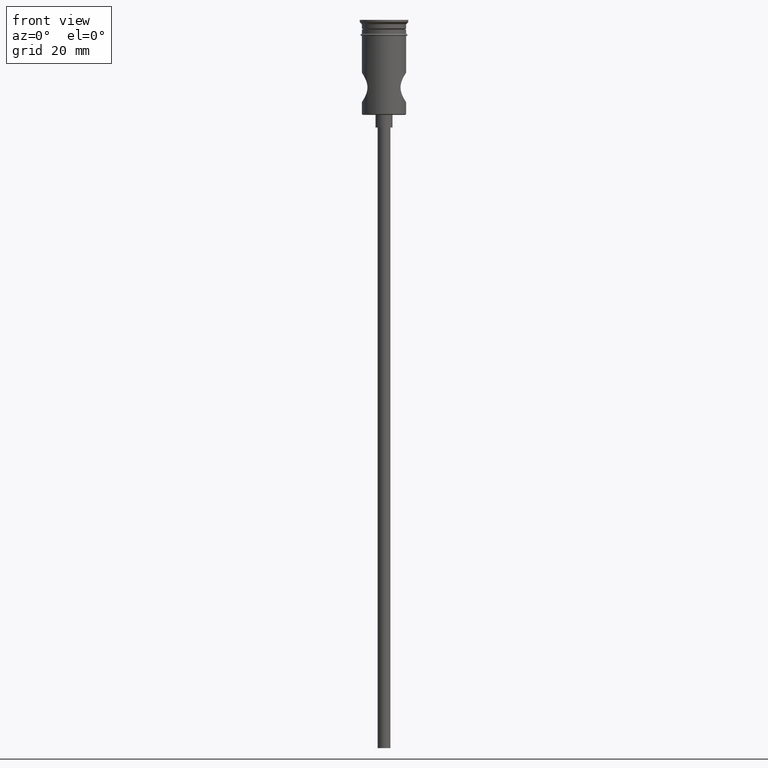
[diagram: clean part render]
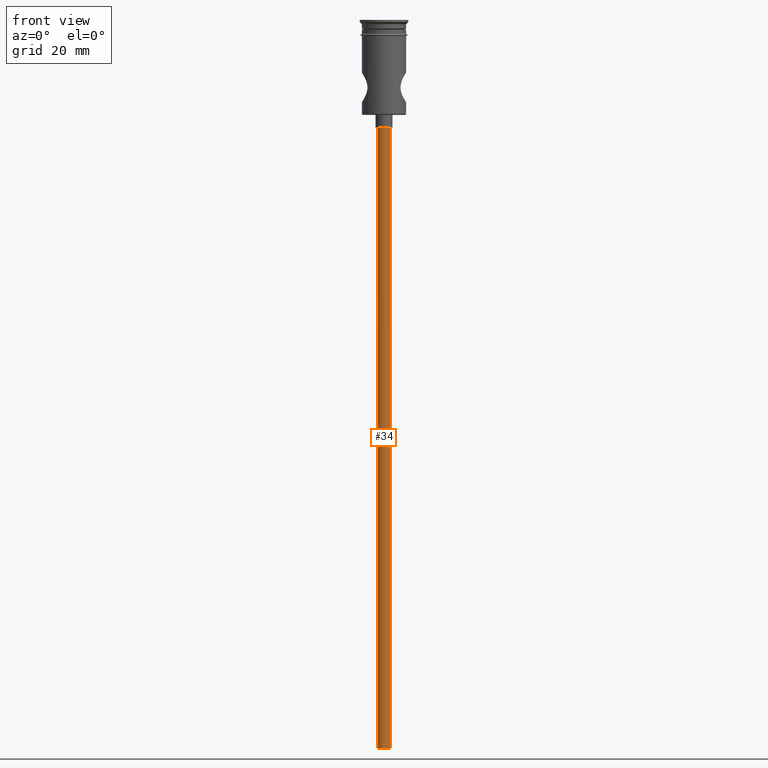
[diagram: same view with one face highlighted and labeled with its STEP entity id]
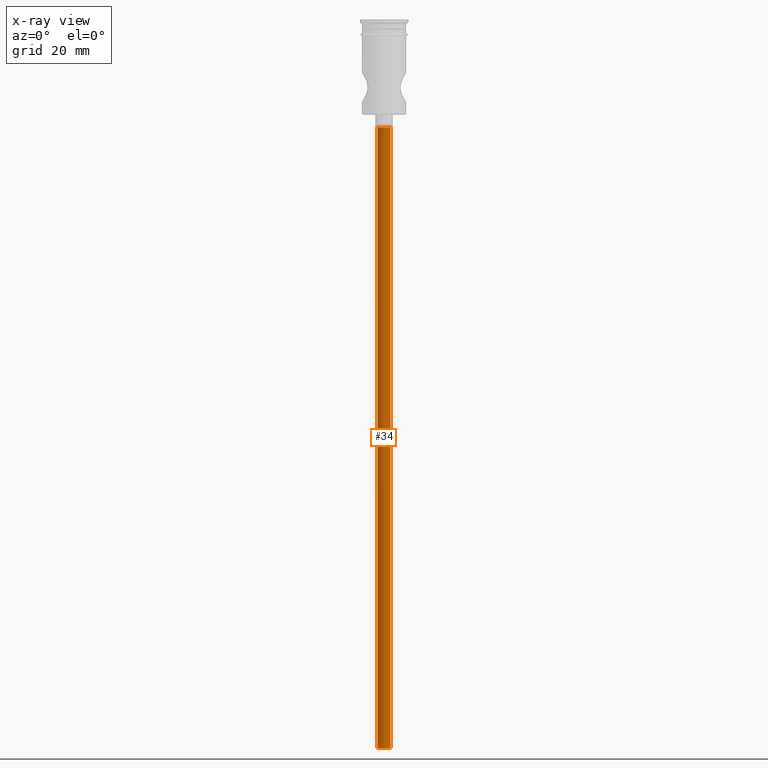
[diagram: x-ray of the same camera — body ghosted, the highlighted face saturated]
A machine part, front view. The second image highlights one B-rep face of the part: STEP entity #34.
The next image is the same camera in x-ray: the body ghosted, the highlighted face saturated — about 0% of this face is hidden behind the body in this view.
In plain terms, the highlighted cylindrical surface (edge-blend (fillet) strip) has radius 1.5 mm, axis along (-0, -0, 1).
Its self-contained STEP definition (entity closure, byte-faithful):
#9 = DIRECTION ( 'NONE',  ( -0.000000000000000000, -0.000000000000000000, 1.000000000000000000 ) ) ;
#34 = ADVANCED_FACE ( 'NONE', ( #1021 ), #1341, .T. ) ;
#36 = VERTEX_POINT ( 'NONE', #779 ) ;
#115 = AXIS2_PLACEMENT_3D ( 'NONE', #551, #1214, #786 ) ;
#180 = CARTESIAN_POINT ( 'NONE',  ( 1.500000000000000222, 0.000000000000000000, -25.50000000000000000 ) ) ;
#286 = CIRCLE ( 'NONE', #893, 1.500000000000000222 ) ;
#316 = EDGE_LOOP ( 'NONE', ( #1171, #725, #1382, #516 ) ) ;
#334 = LINE ( 'NONE', #782, #1176 ) ;
#339 = VERTEX_POINT ( 'NONE', #398 ) ;
#355 = DIRECTION ( 'NONE',  ( -0.000000000000000000, -0.000000000000000000, 1.000000000000000000 ) ) ;
#358 = EDGE_CURVE ( 'NONE', #840, #36, #1019, .T. ) ;
#387 = EDGE_CURVE ( 'NONE', #339, #582, #334, .T. ) ;
#398 = CARTESIAN_POINT ( 'NONE',  ( 1.500000000000000222, 0.000000000000000000, -172.5000000000000000 ) ) ;
#516 = ORIENTED_EDGE ( 'NONE', *, *, #836, .T. ) ;
#551 = CARTESIAN_POINT ( 'NONE',  ( 0.000000000000000000, 0.000000000000000000, -172.5000000000000000 ) ) ;
#580 = CARTESIAN_POINT ( 'NONE',  ( -1.500000000000000222, 1.836970198721030181E-16, -172.5000000000000000 ) ) ;
#582 = VERTEX_POINT ( 'NONE', #180 ) ;
#593 = DIRECTION ( 'NONE',  ( 0.000000000000000000, 0.000000000000000000, -1.000000000000000000 ) ) ;
#671 = EDGE_CURVE ( 'NONE', #339, #840, #825, .T. ) ;
#725 = ORIENTED_EDGE ( 'NONE', *, *, #671, .F. ) ;
#728 = VECTOR ( 'NONE', #9, 1000.000000000000000 ) ;
#779 = CARTESIAN_POINT ( 'NONE',  ( -1.500000000000000222, 1.836970198721030181E-16, -25.50000000000000000 ) ) ;
#782 = CARTESIAN_POINT ( 'NONE',  ( 1.500000000000000222, 0.000000000000000000, -172.5000000000000000 ) ) ;
#786 = DIRECTION ( 'NONE',  ( -1.000000000000000000, 0.000000000000000000, 0.000000000000000000 ) ) ;
#825 = CIRCLE ( 'NONE', #115, 1.500000000000000222 ) ;
#836 = EDGE_CURVE ( 'NONE', #582, #36, #286, .T. ) ;
#840 = VERTEX_POINT ( 'NONE', #580 ) ;
#893 = AXIS2_PLACEMENT_3D ( 'NONE', #1373, #593, #934 ) ;
#934 = DIRECTION ( 'NONE',  ( -1.000000000000000000, 0.000000000000000000, 0.000000000000000000 ) ) ;
#1019 = LINE ( 'NONE', #1118, #728 ) ;
#1021 = FACE_OUTER_BOUND ( 'NONE', #316, .T. ) ;
#1032 = AXIS2_PLACEMENT_3D ( 'NONE', #1120, #355, #1334 ) ;
#1118 = CARTESIAN_POINT ( 'NONE',  ( -1.500000000000000222, 1.836970198721030181E-16, -172.5000000000000000 ) ) ;
#1120 = CARTESIAN_POINT ( 'NONE',  ( 0.000000000000000000, 0.000000000000000000, -172.5000000000000000 ) ) ;
#1132 = DIRECTION ( 'NONE',  ( -0.000000000000000000, -0.000000000000000000, 1.000000000000000000 ) ) ;
#1171 = ORIENTED_EDGE ( 'NONE', *, *, #358, .F. ) ;
#1176 = VECTOR ( 'NONE', #1132, 1000.000000000000000 ) ;
#1214 = DIRECTION ( 'NONE',  ( 0.000000000000000000, 0.000000000000000000, -1.000000000000000000 ) ) ;
#1334 = DIRECTION ( 'NONE',  ( 1.000000000000000000, 0.000000000000000000, 0.000000000000000000 ) ) ;
#1341 = CYLINDRICAL_SURFACE ( 'NONE', #1032, 1.500000000000000222 ) ;
#1373 = CARTESIAN_POINT ( 'NONE',  ( 0.000000000000000000, 0.000000000000000000, -25.50000000000000000 ) ) ;
#1382 = ORIENTED_EDGE ( 'NONE', *, *, #387, .T. ) ;